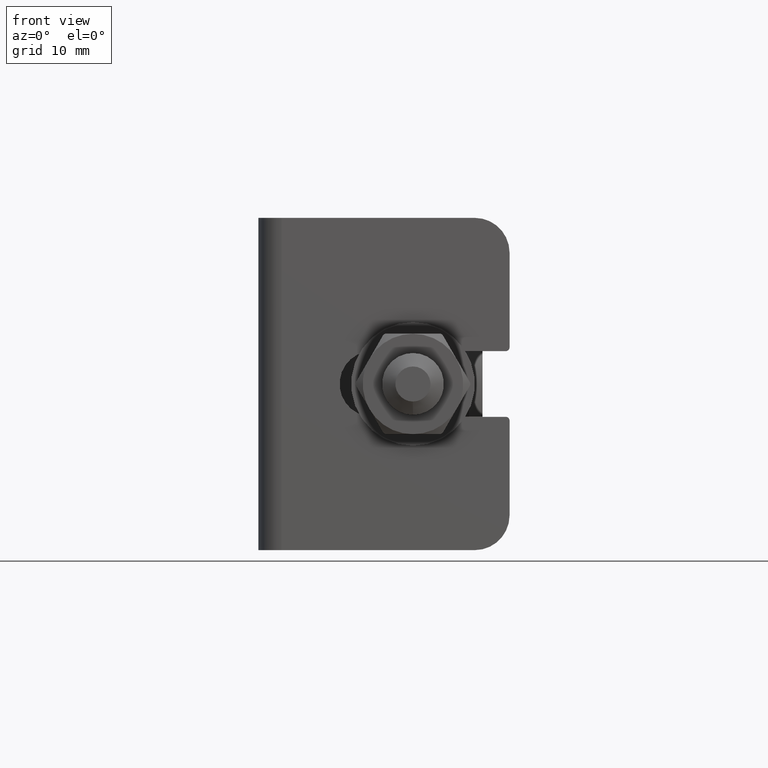
[diagram: clean part render]
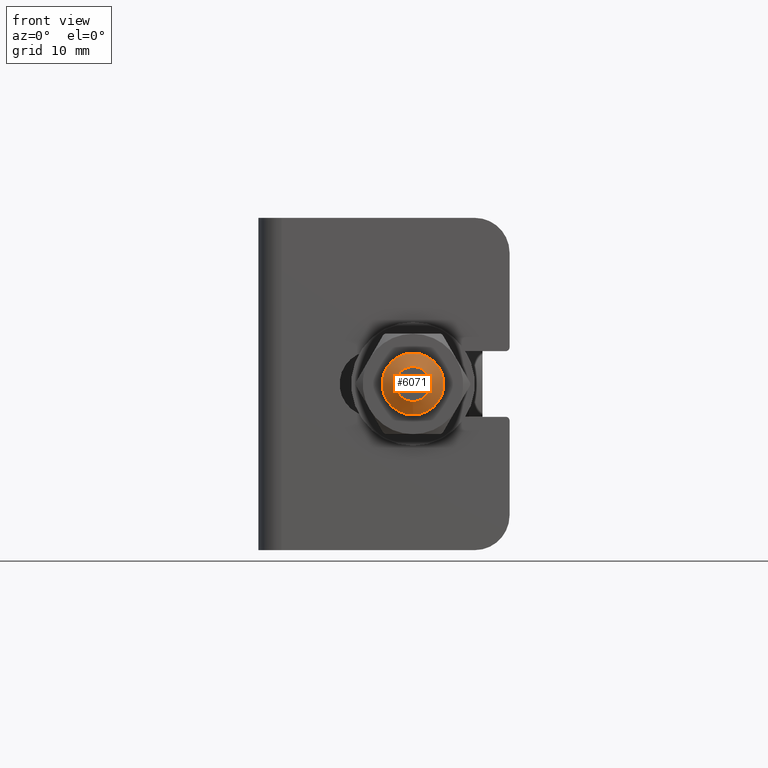
[diagram: same view with one face highlighted and labeled with its STEP entity id]
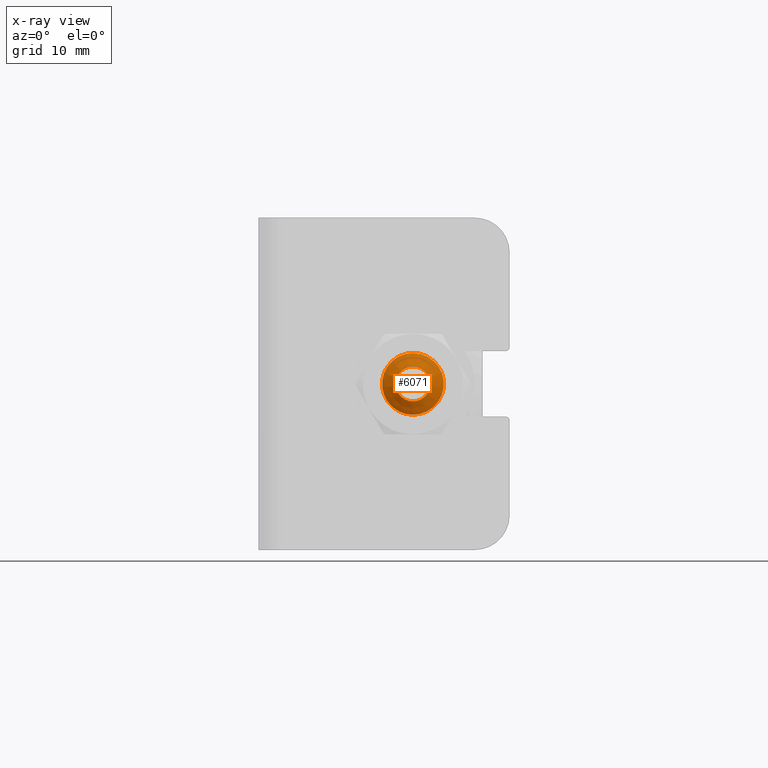
[diagram: x-ray of the same camera — body ghosted, the highlighted face saturated]
A machine part, front view. The second image highlights one B-rep face of the part: STEP entity #6071.
The next image is the same camera in x-ray: the body ghosted, the highlighted face saturated — about 0% of this face is hidden behind the body in this view.
In plain terms, the highlighted conical surface has half-angle 60 deg.
Its self-contained STEP definition (entity closure, byte-faithful):
#324 = AXIS2_PLACEMENT_3D ( 'NONE', #947, #2705, #6576 ) ;
#947 = CARTESIAN_POINT ( 'NONE',  ( 0.000000000000000000, -35.00000000000000000, 0.000000000000000000 ) ) ;
#2131 = EDGE_CURVE ( 'NONE', #11491, #11491, #6635, .T. ) ;
#2149 = CARTESIAN_POINT ( 'NONE',  ( 0.000000000000000000, -35.00000000000000000, 0.000000000000000000 ) ) ;
#2705 = DIRECTION ( 'NONE',  ( 0.000000000000000000, 1.000000000000000000, 0.000000000000000000 ) ) ;
#4180 = EDGE_CURVE ( 'NONE', #9427, #9427, #5380, .T. ) ;
#4285 = ORIENTED_EDGE ( 'NONE', *, *, #2131, .F. ) ;
#5380 = CIRCLE ( 'NONE', #8640, 2.267949192431110816 ) ;
#5904 = DIRECTION ( 'NONE',  ( 0.000000000000000000, -1.000000000000000000, 0.000000000000000000 ) ) ;
#6071 = ADVANCED_FACE ( 'NONE', ( #14581, #7172 ), #9835, .T. ) ;
#6576 = DIRECTION ( 'NONE',  ( 0.000000000000000000, 0.000000000000000000, 1.000000000000000000 ) ) ;
#6635 = CIRCLE ( 'NONE', #8737, 4.000000000000000000 ) ;
#7172 = FACE_BOUND ( 'NONE', #13706, .T. ) ;
#8604 = CARTESIAN_POINT ( 'NONE',  ( 0.000000000000000000, -33.99999999999999289, -4.000000000000000000 ) ) ;
#8640 = AXIS2_PLACEMENT_3D ( 'NONE', #2149, #5904, #11372 ) ;
#8737 = AXIS2_PLACEMENT_3D ( 'NONE', #16314, #9791, #11113 ) ;
#9427 = VERTEX_POINT ( 'NONE', #15063 ) ;
#9791 = DIRECTION ( 'NONE',  ( 0.000000000000000000, 1.000000000000000000, 0.000000000000000000 ) ) ;
#9835 = CONICAL_SURFACE ( 'NONE', #324, 2.267949192431110816, 1.047197551196597409 ) ;
#11113 = DIRECTION ( 'NONE',  ( 0.000000000000000000, 0.000000000000000000, -1.000000000000000000 ) ) ;
#11372 = DIRECTION ( 'NONE',  ( 0.000000000000000000, 0.000000000000000000, -1.000000000000000000 ) ) ;
#11491 = VERTEX_POINT ( 'NONE', #8604 ) ;
#12124 = ORIENTED_EDGE ( 'NONE', *, *, #4180, .F. ) ;
#13362 = EDGE_LOOP ( 'NONE', ( #4285 ) ) ;
#13706 = EDGE_LOOP ( 'NONE', ( #12124 ) ) ;
#14581 = FACE_OUTER_BOUND ( 'NONE', #13362, .T. ) ;
#15063 = CARTESIAN_POINT ( 'NONE',  ( 0.000000000000000000, -35.00000000000000000, -2.267949192431110816 ) ) ;
#16314 = CARTESIAN_POINT ( 'NONE',  ( 0.000000000000000000, -33.99999999999999289, 0.000000000000000000 ) ) ;